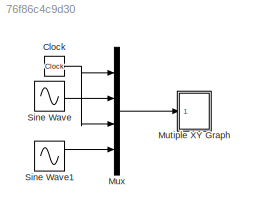
MODEL slx_76f86c4c9d30
KIND model
CONFIG AbsTol = auto
CONFIG EnableMultiTasking = on
CONFIG FixedStep = 0.1
CONFIG MaxStep = 0.05
CONFIG MinStep = auto
CONFIG RelTol = 1e-3
CONFIG SampleTimeConstraint = Unconstrained
CONFIG Solver = VariableStepAuto
CONFIG SolverName = VariableStepAuto
CONFIG StartTime = 0.0
CONFIG StopTime = 10
BLOCK [Clock] Clock
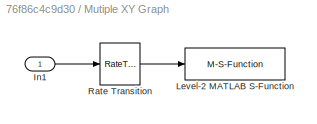
BLOCK [SubSystem] Mutiple XY Graph
  Ports = [1]
  RequestExecContextInheritance = off
  Variant = off
BLOCK [Inport] Mutiple XY Graph/In1
  IconDisplay = Port number
BLOCK [M-S-Function] Mutiple XY Graph/Level-2 MATLAB S-Function
  FunctionName = multiple_xy_graph
  Parameters = number_of_trajectories,axis_limits
  Ports = [1]
BLOCK [RateTransition] Mutiple XY Graph/Rate Transition
  OutPortSampleTime = sample_time
BLOCK [Mux] Mux
  DisplayOption = bar
  Ports = [4, 1]
BLOCK [Sin] Sine Wave
  Ports = [0, 1]
  SampleTime = 0
BLOCK [Sin] Sine Wave1
  Frequency = 0.5
  Ports = [0, 1]
  SampleTime = 0
NET Clock:1 -> Mux:1, Mux:3
LINE Mutiple XY Graph/In1:1 -> Mutiple XY Graph/Rate Transition:1
LINE Mutiple XY Graph/Rate Transition:1 -> Mutiple XY Graph/Level-2 MATLAB S-Function:1
LINE Mux:1 -> Mutiple XY Graph:1
LINE Sine Wave1:1 -> Mux:4
LINE Sine Wave:1 -> Mux:2
note: NET lines group one-source signal fan-out (src -> all destinations, sorted); 1:1 wires keep LINE
